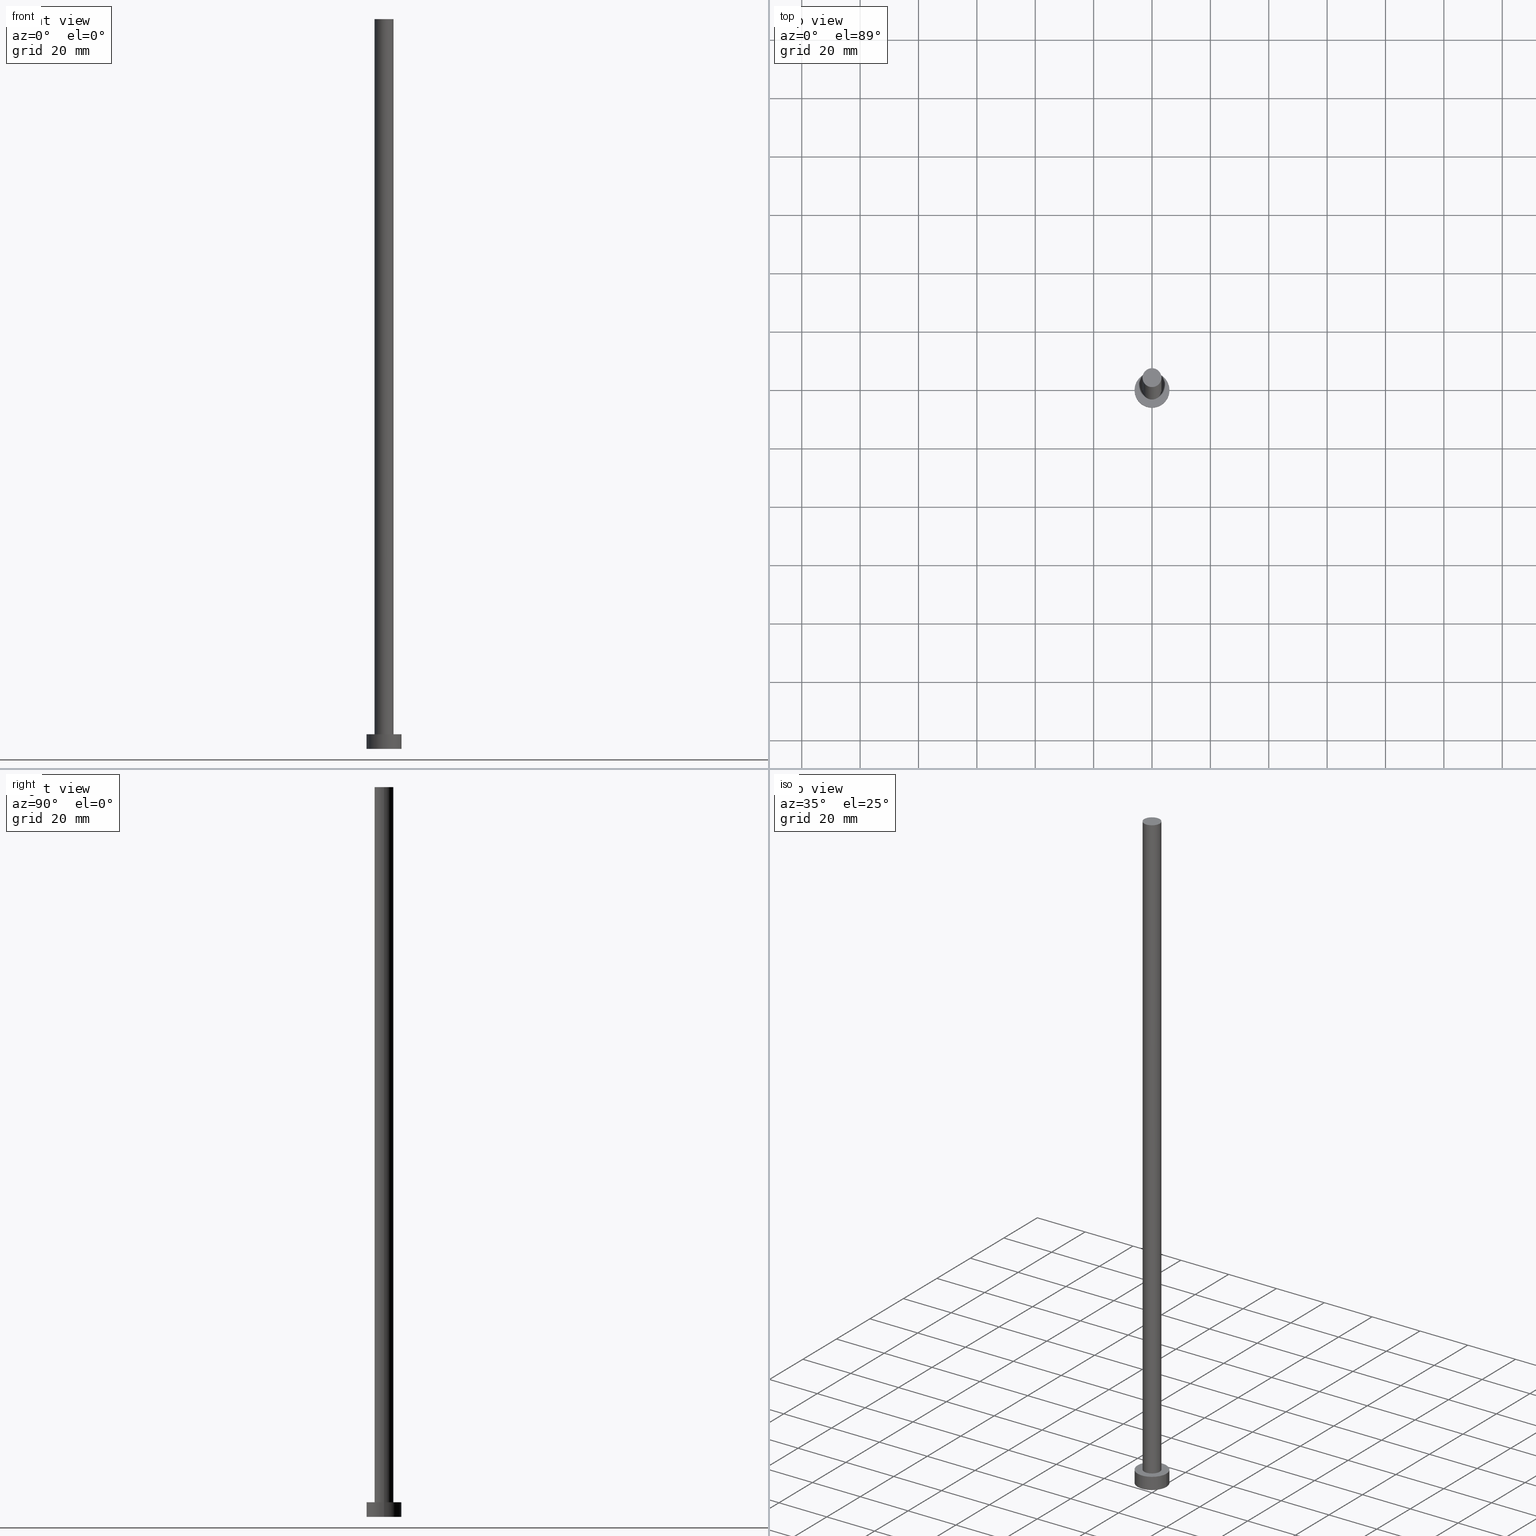
[diagram: canonical four-view strip — front | top / right | iso, engineering-drawing reading convention]
A machine part, canonical four-view strip (front | top / right | iso — engineering-drawing reading convention). The complete STEP part file that produces these views, byte-faithful:
ISO-10303-21;
HEADER;
FILE_DESCRIPTION (( 'STEP AP203' ),
    '1' );
FILE_NAME ('4389.STEP',
    '2023-02-13T13:37:28',
    ( '' ),
    ( '' ),
    'SwSTEP 2.0',
    'SolidWorks 2019',
    '' );
FILE_SCHEMA (( 'CONFIG_CONTROL_DESIGN' ));
ENDSEC;

DATA;
#1 = CYLINDRICAL_SURFACE ( 'NONE', #105, 6.000000000000000888 ) ;
#2 = ORIENTED_EDGE ( 'NONE', *, *, #84, .F. ) ;
#3 = CARTESIAN_POINT ( 'NONE',  ( 0.000000000000000000, 0.000000000000000000, 5.000000000000000000 ) ) ;
#4 = CC_DESIGN_APPROVAL ( #248, ( #60 ) ) ;
#5 = EDGE_CURVE ( 'NONE', #19, #40, #124, .T. ) ;
#6 = COORDINATED_UNIVERSAL_TIME_OFFSET ( 1, 0, .AHEAD. ) ;
#7 = APPLICATION_PROTOCOL_DEFINITION ( 'international standard', 'config_control_design', 1994, #186 ) ;
#8 = CYLINDRICAL_SURFACE ( 'NONE', #174, 3.250000000000000444 ) ;
#9 = APPROVAL_DATE_TIME ( #187, #163 ) ;
#10 = DIRECTION ( 'NONE',  ( 0.000000000000000000, 0.000000000000000000, 1.000000000000000000 ) ) ;
#11 = CIRCLE ( 'NONE', #17, 3.250000000000000444 ) ;
#12 = EDGE_LOOP ( 'NONE', ( #142, #228, #118, #65 ) ) ;
#13 = CC_DESIGN_SECURITY_CLASSIFICATION ( #25, ( #60 ) ) ;
#14 = CC_DESIGN_DATE_AND_TIME_ASSIGNMENT ( #90, #109, ( #25 ) ) ;
#15 = PERSON_AND_ORGANIZATION_ROLE ( 'design_owner' ) ;
#16 = DIRECTION ( 'NONE',  ( 0.000000000000000000, 0.000000000000000000, 1.000000000000000000 ) ) ;
#17 = AXIS2_PLACEMENT_3D ( 'NONE', #123, #237, #144 ) ;
#18 = PERSON_AND_ORGANIZATION ( #110, #37 ) ;
#19 = VERTEX_POINT ( 'NONE', #184 ) ;
#20 = CIRCLE ( 'NONE', #31, 6.000000000000000888 ) ;
#21 = DIRECTION ( 'NONE',  ( -1.000000000000000000, 0.000000000000000000, 0.000000000000000000 ) ) ;
#22 = DIRECTION ( 'NONE',  ( -0.000000000000000000, -0.000000000000000000, -1.000000000000000000 ) ) ;
#23 = CARTESIAN_POINT ( 'NONE',  ( 0.000000000000000000, 0.000000000000000000, 0.000000000000000000 ) ) ;
#24 = DIRECTION ( 'NONE',  ( 0.000000000000000000, 0.000000000000000000, 1.000000000000000000 ) ) ;
#25 = SECURITY_CLASSIFICATION ( '', '', #185 ) ;
#26 = PERSON_AND_ORGANIZATION ( #110, #37 ) ;
#27 = EDGE_CURVE ( 'NONE', #35, #156, #211, .T. ) ;
#28 = CALENDAR_DATE ( 2023, 13, 2 ) ;
#29 = EDGE_CURVE ( 'NONE', #253, #219, #11, .T. ) ;
#30 = CYLINDRICAL_SURFACE ( 'NONE', #36, 6.000000000000000888 ) ;
#31 = AXIS2_PLACEMENT_3D ( 'NONE', #128, #10, #152 ) ;
#32 = APPROVAL_ROLE ( '' ) ;
#33 = LINE ( 'NONE', #74, #243 ) ;
#34 = DATE_AND_TIME ( #151, #111 ) ;
#35 = VERTEX_POINT ( 'NONE', #180 ) ;
#36 = AXIS2_PLACEMENT_3D ( 'NONE', #103, #188, #207 ) ;
#37 = ORGANIZATION ( 'NEUR�EN�', 'NEUR�EN�', '' ) ;
#38 = EDGE_CURVE ( 'NONE', #199, #233, #189, .T. ) ;
#39 = EDGE_LOOP ( 'NONE', ( #138, #61 ) ) ;
#40 = VERTEX_POINT ( 'NONE', #47 ) ;
#41 = AXIS2_PLACEMENT_3D ( 'NONE', #49, #202, #181 ) ;
#42 = LINE ( 'NONE', #98, #115 ) ;
#43 = PRODUCT_DEFINITION_SHAPE ( 'NONE', 'NONE',  #114 ) ;
#44 = PERSON_AND_ORGANIZATION ( #110, #37 ) ;
#45 = CARTESIAN_POINT ( 'NONE',  ( 0.000000000000000000, 0.000000000000000000, 250.0000000000000000 ) ) ;
#46 = ADVANCED_FACE ( 'NONE', ( #121 ), #1, .T. ) ;
#47 = CARTESIAN_POINT ( 'NONE',  ( 6.000000000000000888, 7.347880794884120722E-16, 5.000000000000000000 ) ) ;
#48 = CARTESIAN_POINT ( 'NONE',  ( -3.250000000000000444, 0.000000000000000000, 250.0000000000000000 ) ) ;
#49 = CARTESIAN_POINT ( 'NONE',  ( 0.000000000000000000, 0.000000000000000000, 5.000000000000000000 ) ) ;
#50 = CALENDAR_DATE ( 2023, 13, 2 ) ;
#51 = LOCAL_TIME ( 14, 37, 28.00000000000000000, #240 ) ;
#52 = DATE_TIME_ROLE ( 'creation_date' ) ;
#53 = PERSON_AND_ORGANIZATION_ROLE ( 'classification_officer' ) ;
#54 = DIRECTION ( 'NONE',  ( -0.000000000000000000, -0.000000000000000000, -1.000000000000000000 ) ) ;
#55 = CARTESIAN_POINT ( 'NONE',  ( 6.000000000000000888, 7.347880794884120722E-16, 0.000000000000000000 ) ) ;
#56 =( NAMED_UNIT ( * ) SI_UNIT ( $, .STERADIAN. ) SOLID_ANGLE_UNIT ( ) );
#57 = APPROVAL ( #108, 'NEUR�EN�' ) ;
#58 = UNCERTAINTY_MEASURE_WITH_UNIT (LENGTH_MEASURE( 1.000000000000000082E-05 ), #227, 'distance_accuracy_value', 'NONE');
#59 = CIRCLE ( 'NONE', #198, 6.000000000000000888 ) ;
#60 = PRODUCT_DEFINITION_FORMATION_WITH_SPECIFIED_SOURCE ( 'LIBOVOLN�', '', #245, .NOT_KNOWN. ) ;
#61 = ORIENTED_EDGE ( 'NONE', *, *, #70, .T. ) ;
#62 = CARTESIAN_POINT ( 'NONE',  ( -3.250000000000000444, 0.000000000000000000, 250.0000000000000000 ) ) ;
#63 = ORIENTED_EDGE ( 'NONE', *, *, #38, .F. ) ;
#64 = PRODUCT_RELATED_PRODUCT_CATEGORY ( 'detail', '', ( #245 ) ) ;
#65 = ORIENTED_EDGE ( 'NONE', *, *, #27, .T. ) ;
#66 = CARTESIAN_POINT ( 'NONE',  ( 0.000000000000000000, 0.000000000000000000, 5.000000000000000000 ) ) ;
#67 = CARTESIAN_POINT ( 'NONE',  ( 3.250000000000000444, 3.980102097228898231E-16, 250.0000000000000000 ) ) ;
#68 = DIRECTION ( 'NONE',  ( 0.000000000000000000, 0.000000000000000000, 1.000000000000000000 ) ) ;
#69 = ADVANCED_BREP_SHAPE_REPRESENTATION ( '4389', ( #148, #158 ), #203 ) ;
#70 = EDGE_CURVE ( 'NONE', #219, #253, #247, .T. ) ;
#71 = PERSON_AND_ORGANIZATION_ROLE ( 'creator' ) ;
#72 = CALENDAR_DATE ( 2023, 13, 2 ) ;
#73 = PERSON_AND_ORGANIZATION ( #110, #37 ) ;
#74 = CARTESIAN_POINT ( 'NONE',  ( -6.000000000000000888, 0.000000000000000000, 5.000000000000000000 ) ) ;
#75 = SHAPE_DEFINITION_REPRESENTATION ( #43, #69 ) ;
#76 = AXIS2_PLACEMENT_3D ( 'NONE', #23, #68, #147 ) ;
#77 = AXIS2_PLACEMENT_3D ( 'NONE', #220, #24, #218 ) ;
#78 = ORIENTED_EDGE ( 'NONE', *, *, #117, .T. ) ;
#79 = ORIENTED_EDGE ( 'NONE', *, *, #27, .F. ) ;
#80 = DIRECTION ( 'NONE',  ( -0.000000000000000000, -0.000000000000000000, -1.000000000000000000 ) ) ;
#81 = CARTESIAN_POINT ( 'NONE',  ( 0.000000000000000000, 0.000000000000000000, 0.000000000000000000 ) ) ;
#82 = VECTOR ( 'NONE', #120, 1000.000000000000000 ) ;
#83 = DIRECTION ( 'NONE',  ( 0.000000000000000000, 0.000000000000000000, 1.000000000000000000 ) ) ;
#84 = EDGE_CURVE ( 'NONE', #233, #199, #101, .T. ) ;
#85 = CALENDAR_DATE ( 2023, 13, 2 ) ;
#86 = PERSON_AND_ORGANIZATION_ROLE ( 'creator' ) ;
#87 = APPROVAL_DATE_TIME ( #205, #248 ) ;
#88 = DIRECTION ( 'NONE',  ( -0.000000000000000000, -0.000000000000000000, -1.000000000000000000 ) ) ;
#89 = CC_DESIGN_PERSON_AND_ORGANIZATION_ASSIGNMENT ( #102, #149, ( #60 ) ) ;
#90 = DATE_AND_TIME ( #85, #252 ) ;
#91 = LOCAL_TIME ( 14, 37, 28.00000000000000000, #223 ) ;
#92 = DIRECTION ( 'NONE',  ( 1.000000000000000000, 0.000000000000000000, 0.000000000000000000 ) ) ;
#93 = EDGE_CURVE ( 'NONE', #19, #35, #33, .T. ) ;
#94 = DIRECTION ( 'NONE',  ( 1.000000000000000000, 0.000000000000000000, -0.000000000000000000 ) ) ;
#95 = DIRECTION ( 'NONE',  ( 0.000000000000000000, 0.000000000000000000, 1.000000000000000000 ) ) ;
#96 = EDGE_LOOP ( 'NONE', ( #210, #217, #246, #112 ) ) ;
#97 = CARTESIAN_POINT ( 'NONE',  ( 6.000000000000000888, 7.347880794884120722E-16, 5.000000000000000000 ) ) ;
#98 = CARTESIAN_POINT ( 'NONE',  ( 3.250000000000000444, 3.980102097228898231E-16, 250.0000000000000000 ) ) ;
#99 = DIRECTION ( 'NONE',  ( 0.000000000000000000, 0.000000000000000000, 1.000000000000000000 ) ) ;
#100 = DIRECTION ( 'NONE',  ( 1.000000000000000000, 0.000000000000000000, -0.000000000000000000 ) ) ;
#101 = CIRCLE ( 'NONE', #141, 3.250000000000000444 ) ;
#102 = PERSON_AND_ORGANIZATION ( #110, #37 ) ;
#103 = CARTESIAN_POINT ( 'NONE',  ( 0.000000000000000000, 0.000000000000000000, 5.000000000000000000 ) ) ;
#104 = CC_DESIGN_DATE_AND_TIME_ASSIGNMENT ( #224, #52, ( #114 ) ) ;
#105 = AXIS2_PLACEMENT_3D ( 'NONE', #3, #80, #162 ) ;
#106 = PERSON_AND_ORGANIZATION ( #110, #37 ) ;
#107 = CARTESIAN_POINT ( 'NONE',  ( 0.000000000000000000, 0.000000000000000000, 0.000000000000000000 ) ) ;
#108 = APPROVAL_STATUS ( 'not_yet_approved' ) ;
#109 = DATE_TIME_ROLE ( 'classification_date' ) ;
#110 = PERSON ( 'NEUR�EN�', 'NEUR�EN�', 'NEUR�EN�', ('NEUR�EN�'), ('NEUR�EN�'), ('NEUR�EN�') ) ;
#111 = LOCAL_TIME ( 14, 37, 28.00000000000000000, #130 ) ;
#112 = ORIENTED_EDGE ( 'NONE', *, *, #93, .F. ) ;
#113 = ORIENTED_EDGE ( 'NONE', *, *, #225, .T. ) ;
#114 = PRODUCT_DEFINITION ( 'NEZN�M�', '', #60, #173 ) ;
#115 = VECTOR ( 'NONE', #22, 1000.000000000000000 ) ;
#116 = EDGE_LOOP ( 'NONE', ( #229, #250, #113, #119 ) ) ;
#117 = EDGE_CURVE ( 'NONE', #40, #19, #20, .T. ) ;
#118 = ORIENTED_EDGE ( 'NONE', *, *, #93, .T. ) ;
#119 = ORIENTED_EDGE ( 'NONE', *, *, #38, .T. ) ;
#120 = DIRECTION ( 'NONE',  ( -0.000000000000000000, -0.000000000000000000, -1.000000000000000000 ) ) ;
#121 = FACE_OUTER_BOUND ( 'NONE', #96, .T. ) ;
#122 = LINE ( 'NONE', #97, #135 ) ;
#123 = CARTESIAN_POINT ( 'NONE',  ( 0.000000000000000000, 0.000000000000000000, 250.0000000000000000 ) ) ;
#124 = CIRCLE ( 'NONE', #41, 6.000000000000000888 ) ;
#125 = APPROVAL_STATUS ( 'not_yet_approved' ) ;
#126 = ADVANCED_FACE ( 'NONE', ( #241 ), #30, .T. ) ;
#127 = COORDINATED_UNIVERSAL_TIME_OFFSET ( 1, 0, .AHEAD. ) ;
#128 = CARTESIAN_POINT ( 'NONE',  ( 0.000000000000000000, 0.000000000000000000, 5.000000000000000000 ) ) ;
#129 =( NAMED_UNIT ( * ) PLANE_ANGLE_UNIT ( ) SI_UNIT ( $, .RADIAN. ) );
#130 = COORDINATED_UNIVERSAL_TIME_OFFSET ( 1, 0, .AHEAD. ) ;
#131 = FACE_OUTER_BOUND ( 'NONE', #231, .T. ) ;
#132 = AXIS2_PLACEMENT_3D ( 'NONE', #255, #95, #100 ) ;
#133 = ADVANCED_FACE ( 'NONE', ( #131 ), #8, .T. ) ;
#134 = CC_DESIGN_PERSON_AND_ORGANIZATION_ASSIGNMENT ( #106, #71, ( #60 ) ) ;
#135 = VECTOR ( 'NONE', #238, 1000.000000000000000 ) ;
#136 = ORIENTED_EDGE ( 'NONE', *, *, #225, .F. ) ;
#137 = ORIENTED_EDGE ( 'NONE', *, *, #84, .T. ) ;
#138 = ORIENTED_EDGE ( 'NONE', *, *, #29, .T. ) ;
#139 = DIRECTION ( 'NONE',  ( 1.000000000000000000, 0.000000000000000000, -0.000000000000000000 ) ) ;
#140 = FACE_OUTER_BOUND ( 'NONE', #116, .T. ) ;
#141 = AXIS2_PLACEMENT_3D ( 'NONE', #66, #83, #165 ) ;
#142 = ORIENTED_EDGE ( 'NONE', *, *, #251, .F. ) ;
#143 = DIRECTION ( 'NONE',  ( -0.000000000000000000, -0.000000000000000000, -1.000000000000000000 ) ) ;
#144 = DIRECTION ( 'NONE',  ( 1.000000000000000000, 0.000000000000000000, 0.000000000000000000 ) ) ;
#145 = EDGE_CURVE ( 'NONE', #156, #35, #59, .T. ) ;
#146 = ORIENTED_EDGE ( 'NONE', *, *, #5, .T. ) ;
#147 = DIRECTION ( 'NONE',  ( 1.000000000000000000, 0.000000000000000000, 0.000000000000000000 ) ) ;
#148 = MANIFOLD_SOLID_BREP ( 'P�idat vysunut�m3', #169 ) ;
#149 = PERSON_AND_ORGANIZATION_ROLE ( 'design_supplier' ) ;
#150 = APPROVAL_PERSON_ORGANIZATION ( #26, #248, #242 ) ;
#151 = CALENDAR_DATE ( 2023, 13, 2 ) ;
#152 = DIRECTION ( 'NONE',  ( 1.000000000000000000, 0.000000000000000000, 0.000000000000000000 ) ) ;
#153 = DIRECTION ( 'NONE',  ( 0.000000000000000000, 0.000000000000000000, 1.000000000000000000 ) ) ;
#154 = CC_DESIGN_APPROVAL ( #163, ( #25 ) ) ;
#155 = CC_DESIGN_PERSON_AND_ORGANIZATION_ASSIGNMENT ( #18, #15, ( #245 ) ) ;
#156 = VERTEX_POINT ( 'NONE', #55 ) ;
#157 = AXIS2_PLACEMENT_3D ( 'NONE', #81, #160, #94 ) ;
#158 = AXIS2_PLACEMENT_3D ( 'NONE', #212, #16, #92 ) ;
#159 = EDGE_LOOP ( 'NONE', ( #146, #78 ) ) ;
#160 = DIRECTION ( 'NONE',  ( 0.000000000000000000, 0.000000000000000000, 1.000000000000000000 ) ) ;
#161 = CARTESIAN_POINT ( 'NONE',  ( -3.250000000000000444, 0.000000000000000000, 5.000000000000000000 ) ) ;
#162 = DIRECTION ( 'NONE',  ( -1.000000000000000000, 0.000000000000000000, 0.000000000000000000 ) ) ;
#163 = APPROVAL ( #204, 'NEUR�EN�' ) ;
#164 = PLANE ( 'NONE',  #132 ) ;
#165 = DIRECTION ( 'NONE',  ( 1.000000000000000000, 0.000000000000000000, 0.000000000000000000 ) ) ;
#166 = PERSON_AND_ORGANIZATION ( #110, #37 ) ;
#167 = ADVANCED_FACE ( 'NONE', ( #190 ), #164, .T. ) ;
#168 = DIRECTION ( 'NONE',  ( 1.000000000000000000, 0.000000000000000000, 0.000000000000000000 ) ) ;
#169 = CLOSED_SHELL ( 'NONE', ( #133, #46, #126, #191, #179, #193, #167 ) ) ;
#170 = MECHANICAL_CONTEXT ( 'NONE', #186, 'mechanical' ) ;
#171 = DIRECTION ( 'NONE',  ( -1.000000000000000000, 0.000000000000000000, 0.000000000000000000 ) ) ;
#172 = APPROVAL_PERSON_ORGANIZATION ( #239, #163, #206 ) ;
#173 = DESIGN_CONTEXT ( 'detailed design', #249, 'design' ) ;
#174 = AXIS2_PLACEMENT_3D ( 'NONE', #226, #88, #171 ) ;
#175 = EDGE_LOOP ( 'NONE', ( #63, #2 ) ) ;
#176 = EDGE_LOOP ( 'NONE', ( #79, #178 ) ) ;
#177 = CARTESIAN_POINT ( 'NONE',  ( 0.000000000000000000, 0.000000000000000000, 5.000000000000000000 ) ) ;
#178 = ORIENTED_EDGE ( 'NONE', *, *, #145, .F. ) ;
#179 = ADVANCED_FACE ( 'NONE', ( #182 ), #196, .F. ) ;
#180 = CARTESIAN_POINT ( 'NONE',  ( -6.000000000000000888, 0.000000000000000000, 0.000000000000000000 ) ) ;
#181 = DIRECTION ( 'NONE',  ( 1.000000000000000000, 0.000000000000000000, 0.000000000000000000 ) ) ;
#182 = FACE_OUTER_BOUND ( 'NONE', #176, .T. ) ;
#183 = CC_DESIGN_APPROVAL ( #57, ( #114 ) ) ;
#184 = CARTESIAN_POINT ( 'NONE',  ( -6.000000000000000888, 0.000000000000000000, 5.000000000000000000 ) ) ;
#185 = SECURITY_CLASSIFICATION_LEVEL ( 'unclassified' ) ;
#186 = APPLICATION_CONTEXT ( 'configuration controlled 3d designs of mechanical parts and assemblies' ) ;
#187 = DATE_AND_TIME ( #28, #91 ) ;
#188 = DIRECTION ( 'NONE',  ( -0.000000000000000000, -0.000000000000000000, -1.000000000000000000 ) ) ;
#189 = CIRCLE ( 'NONE', #77, 3.250000000000000444 ) ;
#190 = FACE_OUTER_BOUND ( 'NONE', #39, .T. ) ;
#191 = ADVANCED_FACE ( 'NONE', ( #230, #235 ), #197, .T. ) ;
#192 = AXIS2_PLACEMENT_3D ( 'NONE', #177, #254, #139 ) ;
#193 = ADVANCED_FACE ( 'NONE', ( #140 ), #216, .T. ) ;
#194 = AXIS2_PLACEMENT_3D ( 'NONE', #45, #143, #21 ) ;
#195 = ORIENTED_EDGE ( 'NONE', *, *, #70, .F. ) ;
#196 = PLANE ( 'NONE',  #157 ) ;
#197 = PLANE ( 'NONE',  #192 ) ;
#198 = AXIS2_PLACEMENT_3D ( 'NONE', #107, #153, #168 ) ;
#199 = VERTEX_POINT ( 'NONE', #161 ) ;
#200 = DIRECTION ( 'NONE',  ( 1.000000000000000000, 0.000000000000000000, 0.000000000000000000 ) ) ;
#201 = CARTESIAN_POINT ( 'NONE',  ( 3.250000000000000444, 3.980102097228898231E-16, 5.000000000000000000 ) ) ;
#202 = DIRECTION ( 'NONE',  ( 0.000000000000000000, 0.000000000000000000, 1.000000000000000000 ) ) ;
#203 =( GEOMETRIC_REPRESENTATION_CONTEXT ( 3 ) GLOBAL_UNCERTAINTY_ASSIGNED_CONTEXT ( ( #58 ) ) GLOBAL_UNIT_ASSIGNED_CONTEXT ( ( #227, #129, #56 ) ) REPRESENTATION_CONTEXT ( 'NONE', 'WORKASPACE' ) );
#204 = APPROVAL_STATUS ( 'not_yet_approved' ) ;
#205 = DATE_AND_TIME ( #50, #51 ) ;
#206 = APPROVAL_ROLE ( '' ) ;
#207 = DIRECTION ( 'NONE',  ( -1.000000000000000000, 0.000000000000000000, 0.000000000000000000 ) ) ;
#208 = APPROVAL_DATE_TIME ( #34, #57 ) ;
#209 = CC_DESIGN_PERSON_AND_ORGANIZATION_ASSIGNMENT ( #73, #53, ( #25 ) ) ;
#210 = ORIENTED_EDGE ( 'NONE', *, *, #117, .F. ) ;
#211 = CIRCLE ( 'NONE', #76, 6.000000000000000888 ) ;
#212 = CARTESIAN_POINT ( 'NONE',  ( 0.000000000000000000, 0.000000000000000000, 0.000000000000000000 ) ) ;
#213 = CC_DESIGN_PERSON_AND_ORGANIZATION_ASSIGNMENT ( #166, #86, ( #114 ) ) ;
#214 = ORIENTED_EDGE ( 'NONE', *, *, #232, .T. ) ;
#215 = APPLICATION_PROTOCOL_DEFINITION ( 'international standard', 'config_control_design', 1994, #249 ) ;
#216 = CYLINDRICAL_SURFACE ( 'NONE', #194, 3.250000000000000444 ) ;
#217 = ORIENTED_EDGE ( 'NONE', *, *, #251, .T. ) ;
#218 = DIRECTION ( 'NONE',  ( 1.000000000000000000, 0.000000000000000000, 0.000000000000000000 ) ) ;
#219 = VERTEX_POINT ( 'NONE', #67 ) ;
#220 = CARTESIAN_POINT ( 'NONE',  ( 0.000000000000000000, 0.000000000000000000, 5.000000000000000000 ) ) ;
#221 = AXIS2_PLACEMENT_3D ( 'NONE', #236, #99, #200 ) ;
#222 = LOCAL_TIME ( 14, 37, 28.00000000000000000, #6 ) ;
#223 = COORDINATED_UNIVERSAL_TIME_OFFSET ( 1, 0, .AHEAD. ) ;
#224 = DATE_AND_TIME ( #72, #222 ) ;
#225 = EDGE_CURVE ( 'NONE', #253, #199, #234, .T. ) ;
#226 = CARTESIAN_POINT ( 'NONE',  ( 0.000000000000000000, 0.000000000000000000, 250.0000000000000000 ) ) ;
#227 =( LENGTH_UNIT ( ) NAMED_UNIT ( * ) SI_UNIT ( .MILLI., .METRE. ) );
#228 = ORIENTED_EDGE ( 'NONE', *, *, #5, .F. ) ;
#229 = ORIENTED_EDGE ( 'NONE', *, *, #232, .F. ) ;
#230 = FACE_BOUND ( 'NONE', #175, .T. ) ;
#231 = EDGE_LOOP ( 'NONE', ( #195, #214, #137, #136 ) ) ;
#232 = EDGE_CURVE ( 'NONE', #219, #233, #42, .T. ) ;
#233 = VERTEX_POINT ( 'NONE', #201 ) ;
#234 = LINE ( 'NONE', #48, #82 ) ;
#235 = FACE_OUTER_BOUND ( 'NONE', #159, .T. ) ;
#236 = CARTESIAN_POINT ( 'NONE',  ( 0.000000000000000000, 0.000000000000000000, 250.0000000000000000 ) ) ;
#237 = DIRECTION ( 'NONE',  ( 0.000000000000000000, 0.000000000000000000, 1.000000000000000000 ) ) ;
#238 = DIRECTION ( 'NONE',  ( -0.000000000000000000, -0.000000000000000000, -1.000000000000000000 ) ) ;
#239 = PERSON_AND_ORGANIZATION ( #110, #37 ) ;
#240 = COORDINATED_UNIVERSAL_TIME_OFFSET ( 1, 0, .AHEAD. ) ;
#241 = FACE_OUTER_BOUND ( 'NONE', #12, .T. ) ;
#242 = APPROVAL_ROLE ( '' ) ;
#243 = VECTOR ( 'NONE', #54, 1000.000000000000000 ) ;
#244 = APPROVAL_PERSON_ORGANIZATION ( #44, #57, #32 ) ;
#245 = PRODUCT ( '4389', '4389', '', ( #170 ) ) ;
#246 = ORIENTED_EDGE ( 'NONE', *, *, #145, .T. ) ;
#247 = CIRCLE ( 'NONE', #221, 3.250000000000000444 ) ;
#248 = APPROVAL ( #125, 'NEUR�EN�' ) ;
#249 = APPLICATION_CONTEXT ( 'configuration controlled 3d designs of mechanical parts and assemblies' ) ;
#250 = ORIENTED_EDGE ( 'NONE', *, *, #29, .F. ) ;
#251 = EDGE_CURVE ( 'NONE', #40, #156, #122, .T. ) ;
#252 = LOCAL_TIME ( 14, 37, 28.00000000000000000, #127 ) ;
#253 = VERTEX_POINT ( 'NONE', #62 ) ;
#254 = DIRECTION ( 'NONE',  ( 0.000000000000000000, 0.000000000000000000, 1.000000000000000000 ) ) ;
#255 = CARTESIAN_POINT ( 'NONE',  ( 0.000000000000000000, 0.000000000000000000, 250.0000000000000000 ) ) ;
ENDSEC;
END-ISO-10303-21;
